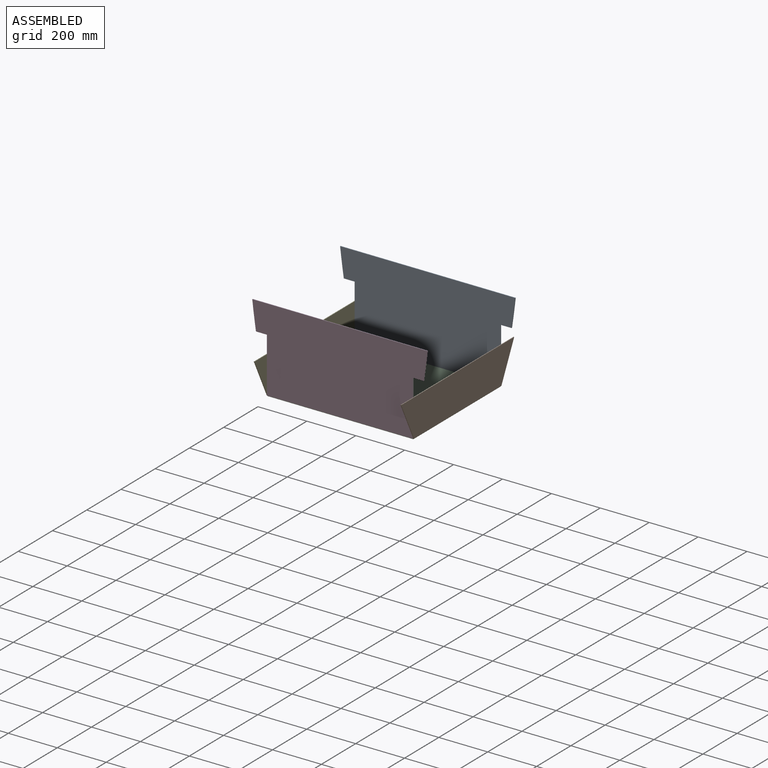
[diagram: assembled view]
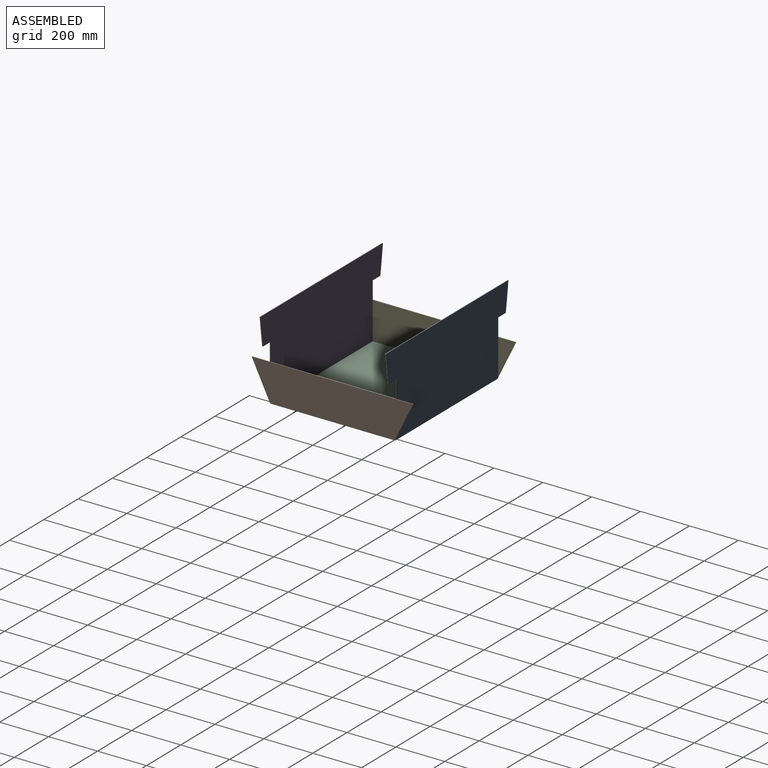
[diagram: assembled view, second angle]
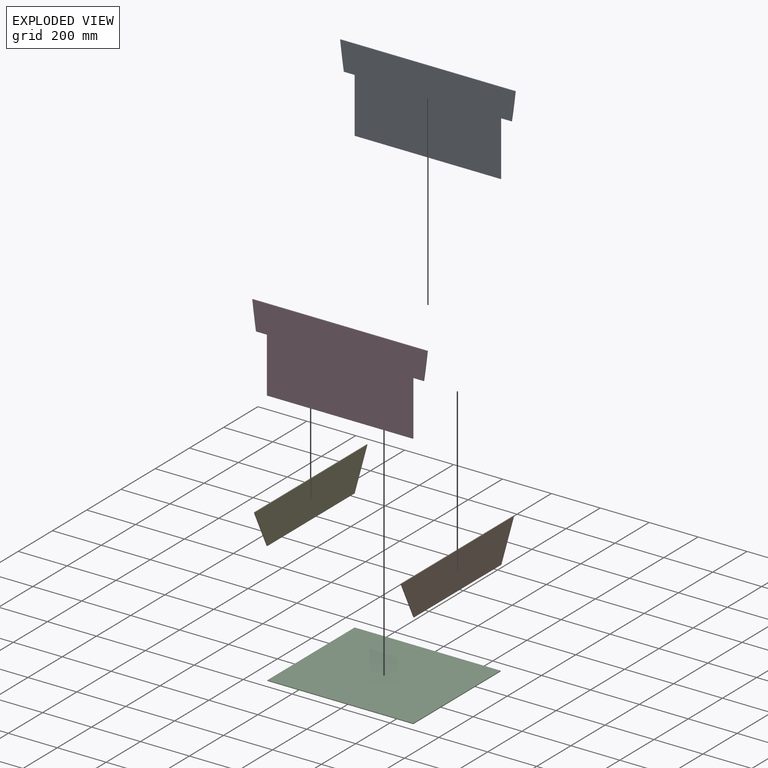
[diagram: exploded view]
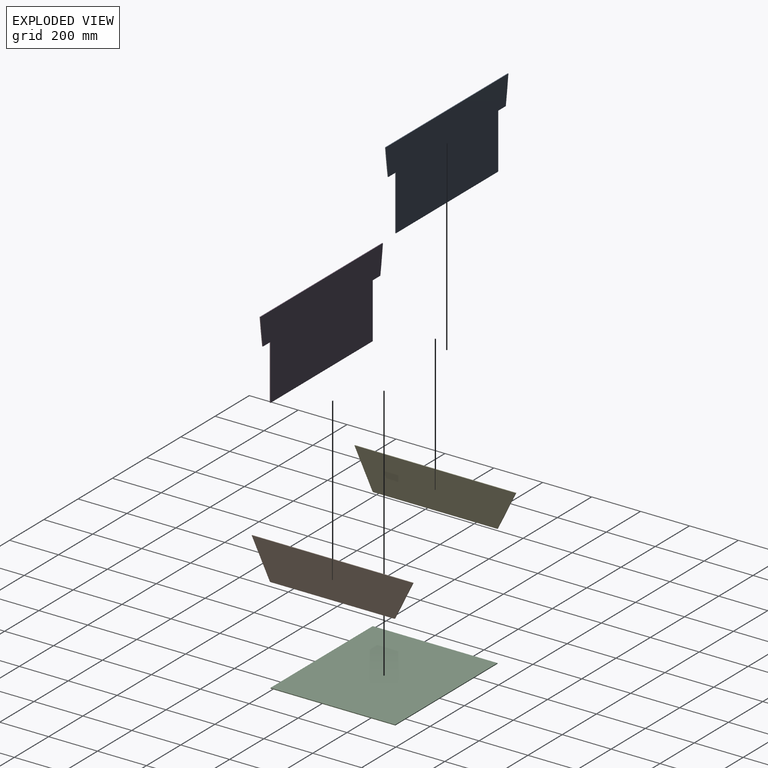
[diagram: exploded view, second angle]
ASSEMBLY  parts=5 mates=4
PART A: 10 faces, bbox 716.1x3x340 mm
  f0: plane 225x3mm, normal (1,0,0), area 675mm2, adj f1,f7,f8,f9
  f1: plane 44.45x3mm, normal (0,0,-1), area 133.3mm2, adj f0,f2,f8,f9
  f2: cylinder r=3162.93mm len=115mm, axis (0,1,0), area 348mm2, adj f1,f3,f8,f9
  f3: plane 716.05x3mm, normal (0,0,1), area 2148.2mm2, adj f2,f4,f8,f9
  f4: cylinder r=3162.93mm len=115mm, axis (0,1,0), area 348mm2, adj f3,f5,f8,f9
  f5: plane 44.45x3mm, normal (0,0,-1), area 133.3mm2, adj f4,f6,f8,f9
  f6: plane 225x3mm, normal (-1,0,0), area 675mm2, adj f5,f7,f8,f9
  f7: plane 596.9x3mm, normal (0,0,-1), area 1790.7mm2, adj f0,f6,f8,f9
  f8: plane 716.05x340mm, normal (0,-1,0), area 214991.2mm2, adj f0,f1,f2,f3,f4,f5,f6,f7
  f9: plane 716.05x340mm, normal (0,1,0), area 214991.2mm2, adj f0,f1,f2,f3,f4,f5,f6,f7
PART B: 6 faces, bbox 660x3x152.4 mm
  f0: plane 660x3mm, normal (0,0,1), area 1980mm2, adj f1,f3,f4,f5
  f1: plane 152.4x75mm, normal (-0.9,0,-0.44), area 509.6mm2, adj f0,f2,f4,f5
  f2: plane 510x3mm, normal (0,0,-1), area 1530mm2, adj f1,f3,f4,f5
  f3: plane 152.4x75mm, normal (0.9,0,-0.44), area 509.6mm2, adj f0,f2,f4,f5
  f4: plane 660x152.4mm, normal (0,-1,0), area 89154mm2, adj f0,f1,f2,f3
  f5: plane 660x152.4mm, normal (0,1,0), area 89154mm2, adj f0,f1,f2,f3
PART C: 6 faces, bbox 596.9x3x510 mm
  f0: plane 596.9x3mm, normal (0,0,1), area 1790.7mm2, adj f1,f3,f4,f5
  f1: plane 510x3mm, normal (-1,0,0), area 1530mm2, adj f0,f2,f4,f5
  f2: plane 596.9x3mm, normal (0,0,-1), area 1790.7mm2, adj f1,f3,f4,f5
  f3: plane 510x3mm, normal (1,0,0), area 1530mm2, adj f0,f2,f4,f5
  f4: plane 596.9x510mm, normal (0,-1,0), area 304419mm2, adj f0,f1,f2,f3
  f5: plane 596.9x510mm, normal (0,1,0), area 304419mm2, adj f0,f1,f2,f3
PART D: same geometry as A
PART E: same geometry as B
PLACE A t=(1990.6,2325.83,-443.49)mm
PLACE B rot(axis=(0,0,-1),90deg) t=(2295.05,955.73,-465.39)mm
PLACE C rot(axis=(-1,0,0),90deg) t=(5136.65,2438.92,-674.49)mm
PLACE D rot(axis=(0,0,1),180deg) t=(1990.6,1803.83,-443.49)mm
PLACE E rot(axis=(0,0,1),90deg) t=(1686.15,3173.93,-465.39)mm
MATE fastened B.f2 <-> C.f4  axis (0,0,1) through (2289.05,2064.83,-668.49)mm
MATE fastened D.f7 <-> C.f4  axis (0,0,1) through (1990.6,1809.83,-668.49)mm
MATE fastened A.f7 <-> C.f4  axis (0,0,1) through (1990.6,2319.83,-668.49)mm
MATE fastened E.f2 <-> C.f4  axis (0,0,1) through (1692.15,2064.83,-668.49)mm
